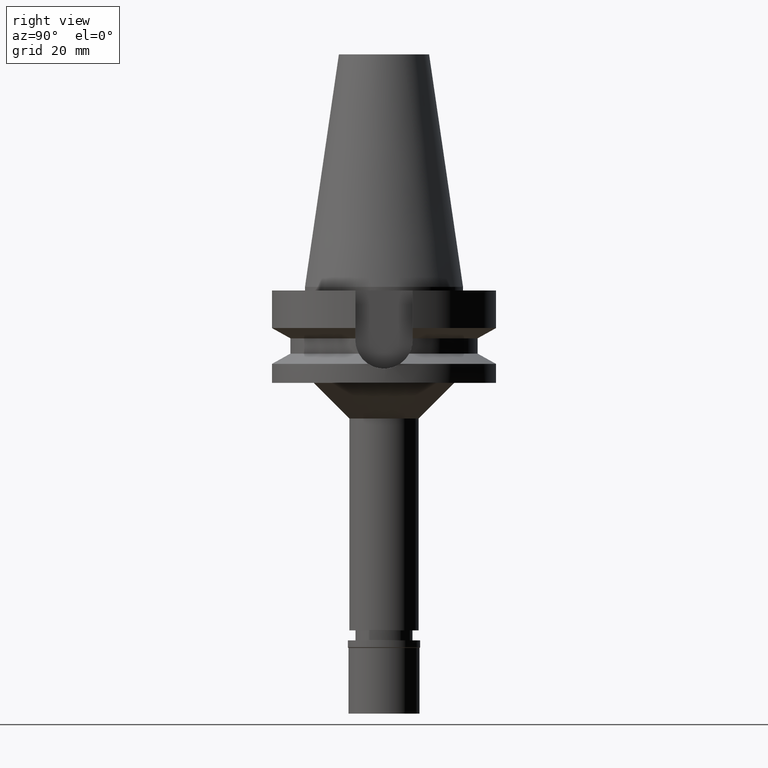
[diagram: clean part render]
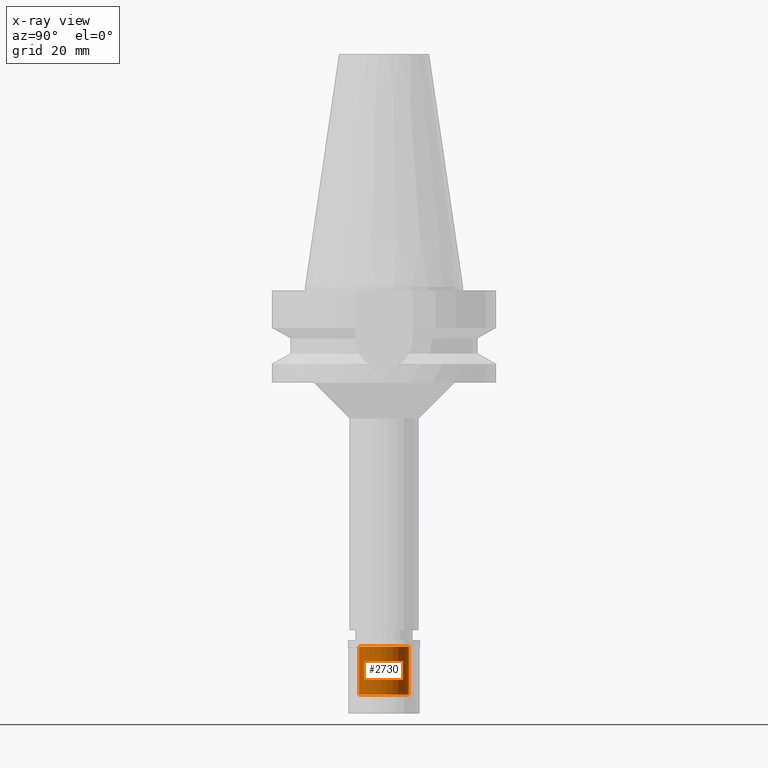
[diagram: x-ray — body ghosted, one internal face saturated and labeled with its STEP entity id]
A machine part, right view, then the same camera in x-ray: the body is ghosted and one INTERNAL B-rep face — a face not visible from any outside direction — is saturated and labeled: STEP entity #2730.
In plain terms, the highlighted cylindrical surface (edge-blend (fillet) strip) has radius 7 mm, axis along (0, 0, -1).
Its self-contained STEP definition (entity closure, byte-faithful):
#73 = EDGE_CURVE ( 'NONE', #1846, #3016, #417, .T. ) ;
#150 = ORIENTED_EDGE ( 'NONE', *, *, #1962, .T. ) ;
#212 = DIRECTION ( 'NONE',  ( 0.0000000000000000000, 0.0000000000000000000, -1.000000000000000000 ) ) ;
#234 = FACE_OUTER_BOUND ( 'NONE', #1752, .T. ) ;
#291 = AXIS2_PLACEMENT_3D ( 'NONE', #976, #2428, #2192 ) ;
#375 = CARTESIAN_POINT ( 'NONE',  ( 0.0000000000000000000, 7.000000000000000000, -15.29999999999999893 ) ) ;
#417 = LINE ( 'NONE', #1156, #1955 ) ;
#532 = DIRECTION ( 'NONE',  ( 0.0000000000000000000, 0.0000000000000000000, 1.000000000000000000 ) ) ;
#793 = CARTESIAN_POINT ( 'NONE',  ( 0.0000000000000000000, -7.000000000000000000, -1.800000000000000044 ) ) ;
#803 = ORIENTED_EDGE ( 'NONE', *, *, #1136, .T. ) ;
#874 = DIRECTION ( 'NONE',  ( 0.0000000000000000000, 0.0000000000000000000, 1.000000000000000000 ) ) ;
#976 = CARTESIAN_POINT ( 'NONE',  ( 0.0000000000000000000, 0.0000000000000000000, 0.0000000000000000000 ) ) ;
#1136 = EDGE_CURVE ( 'NONE', #2795, #3016, #2134, .T. ) ;
#1156 = CARTESIAN_POINT ( 'NONE',  ( 0.0000000000000000000, 7.000000000000000000, -15.29999999999999893 ) ) ;
#1315 = AXIS2_PLACEMENT_3D ( 'NONE', #2450, #532, #1485 ) ;
#1372 = CARTESIAN_POINT ( 'NONE',  ( 0.0000000000000000000, 7.000000000000000000, -1.800000000000000044 ) ) ;
#1449 = CYLINDRICAL_SURFACE ( 'NONE', #291, 7.000000000000000000 ) ;
#1485 = DIRECTION ( 'NONE',  ( 0.0000000000000000000, -1.000000000000000000, 0.0000000000000000000 ) ) ;
#1489 = EDGE_CURVE ( 'NONE', #1846, #2251, #2887, .T. ) ;
#1509 = CARTESIAN_POINT ( 'NONE',  ( 0.0000000000000000000, -7.000000000000000000, -15.29999999999999893 ) ) ;
#1616 = LINE ( 'NONE', #2587, #2425 ) ;
#1752 = EDGE_LOOP ( 'NONE', ( #2640, #150, #803, #3114 ) ) ;
#1846 = VERTEX_POINT ( 'NONE', #375 ) ;
#1857 = CARTESIAN_POINT ( 'NONE',  ( 0.0000000000000000000, 0.0000000000000000000, -15.29999999999999893 ) ) ;
#1955 = VECTOR ( 'NONE', #874, 1000.000000000000000 ) ;
#1962 = EDGE_CURVE ( 'NONE', #2251, #2795, #1616, .T. ) ;
#2131 = DIRECTION ( 'NONE',  ( 0.0000000000000000000, 1.000000000000000000, 0.0000000000000000000 ) ) ;
#2134 = CIRCLE ( 'NONE', #1315, 7.000000000000000000 ) ;
#2192 = DIRECTION ( 'NONE',  ( 0.0000000000000000000, -1.000000000000000000, 0.0000000000000000000 ) ) ;
#2251 = VERTEX_POINT ( 'NONE', #1509 ) ;
#2341 = AXIS2_PLACEMENT_3D ( 'NONE', #1857, #212, #2131 ) ;
#2425 = VECTOR ( 'NONE', #3091, 1000.000000000000000 ) ;
#2428 = DIRECTION ( 'NONE',  ( 0.0000000000000000000, 0.0000000000000000000, -1.000000000000000000 ) ) ;
#2450 = CARTESIAN_POINT ( 'NONE',  ( 0.0000000000000000000, 0.0000000000000000000, -1.800000000000000044 ) ) ;
#2587 = CARTESIAN_POINT ( 'NONE',  ( 0.0000000000000000000, -7.000000000000000000, -15.29999999999999893 ) ) ;
#2640 = ORIENTED_EDGE ( 'NONE', *, *, #1489, .T. ) ;
#2730 = ADVANCED_FACE ( 'NONE', ( #234 ), #1449, .F. ) ;
#2795 = VERTEX_POINT ( 'NONE', #793 ) ;
#2887 = CIRCLE ( 'NONE', #2341, 7.000000000000000000 ) ;
#3016 = VERTEX_POINT ( 'NONE', #1372 ) ;
#3091 = DIRECTION ( 'NONE',  ( 0.0000000000000000000, 0.0000000000000000000, 1.000000000000000000 ) ) ;
#3114 = ORIENTED_EDGE ( 'NONE', *, *, #73, .F. ) ;